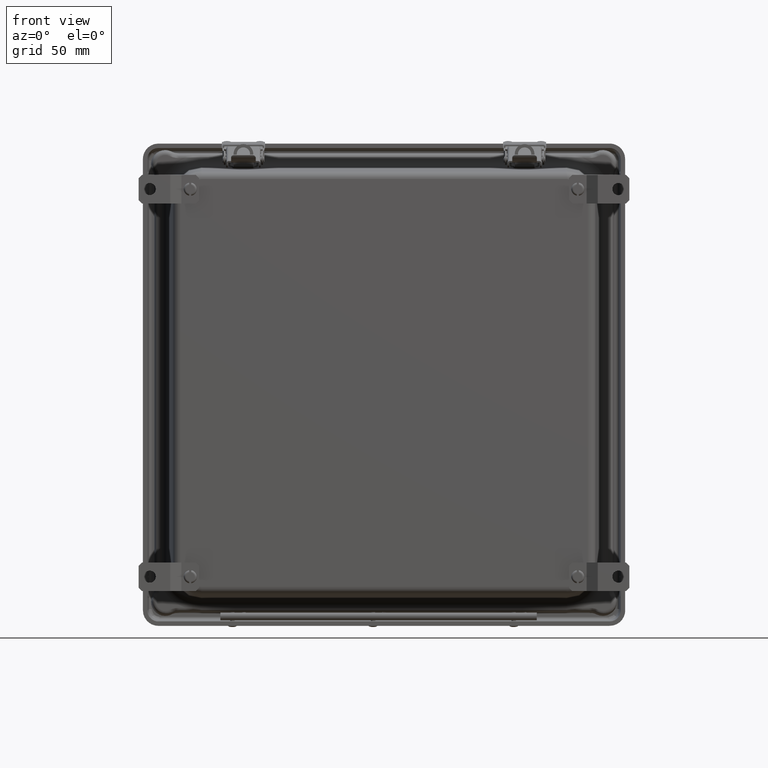
[diagram: clean part render]
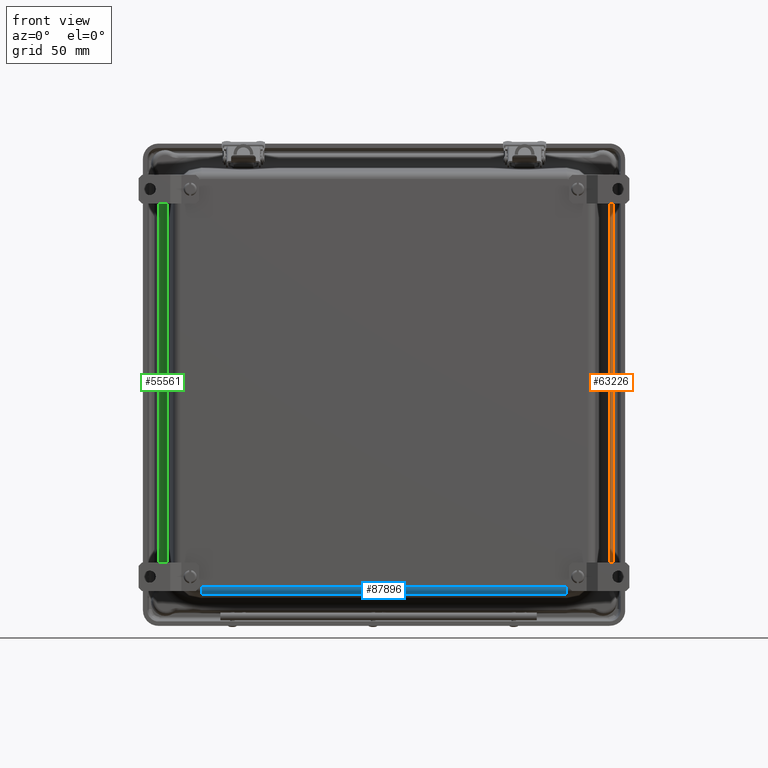
[diagram: same view with three faces highlighted in distinct colors, each labeled with its STEP entity id]
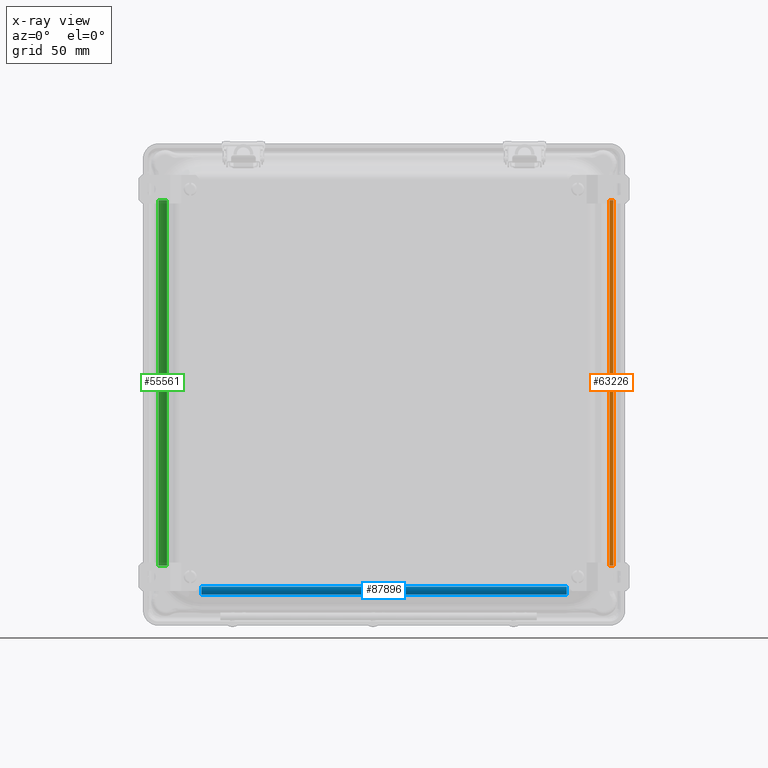
[diagram: x-ray of the same camera — body ghosted, the three highlighted faces saturated]
A machine part, front view with three faces highlighted in distinct colors.
The next image is the same camera in x-ray (body ghosted, the three faces saturated) — at least one of them is partly hidden behind the body in this view.
Their STEP definitions:

[orange] entity #63226 — the highlighted cylindrical surface (edge-blend (fillet) strip) has radius 3.175 mm, axis along (-0, 0, -1).
#16 = ORIENTED_EDGE ( 'NONE', *, *, #86025, .T. ) ;
#8130 = DIRECTION ( 'NONE',  ( 0.0000000000000000000, 0.0000000000000000000, 1.000000000000000000 ) ) ;
#8835 = CARTESIAN_POINT ( 'NONE',  ( 6.396238883583093200, -0.4777936919030115700, 5.198999999999999000 ) ) ;
#12183 = CARTESIAN_POINT ( 'NONE',  ( 6.396238883583093200, -0.4777936919030115200, 5.198999999999999000 ) ) ;
#13624 = VERTEX_POINT ( 'NONE', #23896 ) ;
#17718 = DIRECTION ( 'NONE',  ( 1.761982086452773900E-014, 3.589168845191315400E-015, 1.000000000000000000 ) ) ;
#19847 = CYLINDRICAL_SURFACE ( 'NONE', #88464, 0.1250000000000004400 ) ;
#20323 = VECTOR ( 'NONE', #24576, 39.37007874015748100 ) ;
#23896 = CARTESIAN_POINT ( 'NONE',  ( 6.421189083935123800, -0.6002783338071844300, -5.198999999999999000 ) ) ;
#24576 = DIRECTION ( 'NONE',  ( -1.279985460735938000E-019, -3.665398785208366700E-018, -1.000000000000000000 ) ) ;
#29219 = AXIS2_PLACEMENT_3D ( 'NONE', #82875, #17718, #65324 ) ;
#35527 = VERTEX_POINT ( 'NONE', #68898 ) ;
#36287 = EDGE_CURVE ( 'NONE', #39078, #90282, #45842, .T. ) ;
#36434 = EDGE_CURVE ( 'NONE', #90282, #35527, #99775, .T. ) ;
#38711 = CIRCLE ( 'NONE', #29219, 0.1250000000000004400 ) ;
#39078 = VERTEX_POINT ( 'NONE', #101453 ) ;
#41513 = CARTESIAN_POINT ( 'NONE',  ( 6.421189083935124700, -0.6002783338071845400, 5.198999999999999000 ) ) ;
#45842 = CIRCLE ( 'NONE', #101893, 0.1250000000000004400 ) ;
#48850 = CARTESIAN_POINT ( 'NONE',  ( 6.521162736960480500, -0.4821561289908242200, -5.836861563668760400 ) ) ;
#50800 = DIRECTION ( 'NONE',  ( 1.050912865421913600E-016, -0.0000000000000000000, 1.000000000000000000 ) ) ;
#55478 = VECTOR ( 'NONE', #50800, 39.37007874015748100 ) ;
#58050 = EDGE_LOOP ( 'NONE', ( #16, #100726, #61068, #71778 ) ) ;
#61068 = ORIENTED_EDGE ( 'NONE', *, *, #36287, .F. ) ;
#61498 = DIRECTION ( 'NONE',  ( -1.050912865421913600E-016, 0.0000000000000000000, -1.000000000000000000 ) ) ;
#63226 = ADVANCED_FACE ( 'NONE', ( #92918 ), #19847, .T. ) ;
#65324 = DIRECTION ( 'NONE',  ( 1.000000000000000000, 0.0000000000000000000, -1.748382715945122100E-014 ) ) ;
#67027 = EDGE_CURVE ( 'NONE', #13624, #39078, #77284, .T. ) ;
#68898 = CARTESIAN_POINT ( 'NONE',  ( 6.521162736960480500, -0.4821561289908240500, -5.199000000000000700 ) ) ;
#71778 = ORIENTED_EDGE ( 'NONE', *, *, #67027, .F. ) ;
#77284 = LINE ( 'NONE', #41513, #55478 ) ;
#79487 = CARTESIAN_POINT ( 'NONE',  ( 6.521162736960480500, -0.4821561289908241600, 5.198999999999999000 ) ) ;
#82875 = CARTESIAN_POINT ( 'NONE',  ( 6.396238883583093200, -0.4777936919030112400, -5.198999999999999000 ) ) ;
#86025 = EDGE_CURVE ( 'NONE', #13624, #35527, #38711, .T. ) ;
#88464 = AXIS2_PLACEMENT_3D ( 'NONE', #12183, #61498, #103114 ) ;
#90282 = VERTEX_POINT ( 'NONE', #79487 ) ;
#92918 = FACE_OUTER_BOUND ( 'NONE', #58050, .T. ) ;
#97311 = DIRECTION ( 'NONE',  ( 1.000000000000000000, 0.0000000000000000000, 0.0000000000000000000 ) ) ;
#99775 = LINE ( 'NONE', #48850, #20323 ) ;
#100726 = ORIENTED_EDGE ( 'NONE', *, *, #36434, .F. ) ;
#101453 = CARTESIAN_POINT ( 'NONE',  ( 6.421189083935125600, -0.6002783338071843200, 5.198999999999999000 ) ) ;
#101893 = AXIS2_PLACEMENT_3D ( 'NONE', #8835, #8130, #97311 ) ;
#103114 = DIRECTION ( 'NONE',  ( -1.000000000000000000, 0.0000000000000000000, 0.0000000000000000000 ) ) ;

[blue] entity #87896 — the highlighted cylindrical surface (edge-blend (fillet) strip) has radius 5.5626 mm, axis along (-1, 0, -0).
#5495 = AXIS2_PLACEMENT_3D ( 'NONE', #105757, #73451, #41508 ) ;
#5774 = DIRECTION ( 'NONE',  ( 0.0000000000000000000, 0.0000000000000000000, 1.000000000000000000 ) ) ;
#9044 = CARTESIAN_POINT ( 'NONE',  ( -5.198999999999999000, -5.912687934392951500, -6.018351045082069600 ) ) ;
#11923 = ORIENTED_EDGE ( 'NONE', *, *, #49035, .F. ) ;
#16253 = LINE ( 'NONE', #56023, #32915 ) ;
#19159 = FACE_OUTER_BOUND ( 'NONE', #55098, .T. ) ;
#32915 = VECTOR ( 'NONE', #104829, 39.37007874015748100 ) ;
#36524 = AXIS2_PLACEMENT_3D ( 'NONE', #41007, #48562, #65057 ) ;
#38088 = ORIENTED_EDGE ( 'NONE', *, *, #52449, .T. ) ;
#38256 = CARTESIAN_POINT ( 'NONE',  ( 5.198999999999999000, -5.912687934392951500, -6.018351045082067900 ) ) ;
#41007 = CARTESIAN_POINT ( 'NONE',  ( 5.198999999999999000, -5.905999999999999700, -5.799453188688827900 ) ) ;
#41138 = EDGE_CURVE ( 'NONE', #56029, #51529, #66928, .T. ) ;
#41315 = CARTESIAN_POINT ( 'NONE',  ( 5.198999999999999000, -6.125000000000000000, -5.799453188688827900 ) ) ;
#41508 = DIRECTION ( 'NONE',  ( 0.0000000000000000000, 0.0000000000000000000, -1.000000000000000000 ) ) ;
#43483 = VERTEX_POINT ( 'NONE', #66268 ) ;
#44680 = CYLINDRICAL_SURFACE ( 'NONE', #95303, 0.2190000000000000300 ) ;
#46164 = CARTESIAN_POINT ( 'NONE',  ( 5.198999999999999000, -5.905999999999999700, -5.799453188688827900 ) ) ;
#48562 = DIRECTION ( 'NONE',  ( 1.000000000000000000, 0.0000000000000000000, 0.0000000000000000000 ) ) ;
#49035 = EDGE_CURVE ( 'NONE', #43483, #77072, #16253, .T. ) ;
#50762 = ORIENTED_EDGE ( 'NONE', *, *, #41138, .F. ) ;
#51529 = VERTEX_POINT ( 'NONE', #9044 ) ;
#52449 = EDGE_CURVE ( 'NONE', #43483, #51529, #86162, .T. ) ;
#55098 = EDGE_LOOP ( 'NONE', ( #38088, #50762, #83234, #11923 ) ) ;
#55417 = CARTESIAN_POINT ( 'NONE',  ( 5.198999999999999000, -5.912687934392951500, -6.018351045082069600 ) ) ;
#56023 = CARTESIAN_POINT ( 'NONE',  ( 5.199000000000000700, -6.125000000000000000, -5.799453188688828800 ) ) ;
#56029 = VERTEX_POINT ( 'NONE', #55417 ) ;
#65057 = DIRECTION ( 'NONE',  ( 0.0000000000000000000, 0.0000000000000000000, -1.000000000000000000 ) ) ;
#66268 = CARTESIAN_POINT ( 'NONE',  ( -5.198999999999999000, -6.125000000000000000, -5.799453188688829600 ) ) ;
#66928 = LINE ( 'NONE', #38256, #75891 ) ;
#73451 = DIRECTION ( 'NONE',  ( 1.000000000000000000, 0.0000000000000000000, 0.0000000000000000000 ) ) ;
#75891 = VECTOR ( 'NONE', #96719, 39.37007874015748100 ) ;
#77072 = VERTEX_POINT ( 'NONE', #41315 ) ;
#83234 = ORIENTED_EDGE ( 'NONE', *, *, #83637, .F. ) ;
#83637 = EDGE_CURVE ( 'NONE', #77072, #56029, #96820, .T. ) ;
#86162 = CIRCLE ( 'NONE', #5495, 0.2190000000000000300 ) ;
#87404 = DIRECTION ( 'NONE',  ( -1.000000000000000000, 0.0000000000000000000, -1.050912865421913600E-016 ) ) ;
#87896 = ADVANCED_FACE ( 'NONE', ( #19159 ), #44680, .T. ) ;
#95303 = AXIS2_PLACEMENT_3D ( 'NONE', #46164, #87404, #5774 ) ;
#96719 = DIRECTION ( 'NONE',  ( -1.000000000000000000, 1.796542747822042800E-037, -1.050912865421913300E-016 ) ) ;
#96820 = CIRCLE ( 'NONE', #36524, 0.2190000000000000300 ) ;
#104829 = DIRECTION ( 'NONE',  ( 1.000000000000000000, -0.0000000000000000000, 1.050912865421913600E-016 ) ) ;
#105757 = CARTESIAN_POINT ( 'NONE',  ( -5.198999999999999000, -5.905999999999999700, -5.799453188688829600 ) ) ;

[green] entity #55561 — the highlighted cylindrical surface (edge-blend (fillet) strip) has radius 7.9248 mm, axis along (0, 0, 1).
#1751 = DIRECTION ( 'NONE',  ( 0.0000000000000000000, 0.0000000000000000000, 1.000000000000000000 ) ) ;
#2255 = DIRECTION ( 'NONE',  ( -0.0000000000000000000, -0.0000000000000000000, -1.000000000000000000 ) ) ;
#2363 = EDGE_CURVE ( 'NONE', #81284, #66908, #29335, .T. ) ;
#2415 = AXIS2_PLACEMENT_3D ( 'NONE', #105118, #88261, #5929 ) ;
#5903 = DIRECTION ( 'NONE',  ( 0.0000000000000000000, 0.0000000000000000000, -1.000000000000000000 ) ) ;
#5929 = DIRECTION ( 'NONE',  ( -1.000000000000000000, 0.0000000000000000000, 0.0000000000000000000 ) ) ;
#17492 = CARTESIAN_POINT ( 'NONE',  ( -6.483464784013796700, -0.9060000000000000300, -5.198999999999999800 ) ) ;
#19758 = EDGE_CURVE ( 'NONE', #66908, #47605, #96784, .T. ) ;
#26238 = VECTOR ( 'NONE', #5903, 39.37007874015748100 ) ;
#26626 = ORIENTED_EDGE ( 'NONE', *, *, #2363, .F. ) ;
#26713 = CARTESIAN_POINT ( 'NONE',  ( -6.421189083935124700, -0.6002783338071844300, 5.198999999999999800 ) ) ;
#27296 = CARTESIAN_POINT ( 'NONE',  ( -6.421189083935124700, -0.6002783338071844300, -5.198999999999999800 ) ) ;
#29335 = CIRCLE ( 'NONE', #2415, 0.3120000000000003900 ) ;
#32260 = EDGE_CURVE ( 'NONE', #103108, #47605, #54038, .T. ) ;
#38410 = CARTESIAN_POINT ( 'NONE',  ( -6.171610303672742300, -0.8964719838785353300, -5.198999999999999800 ) ) ;
#39983 = ORIENTED_EDGE ( 'NONE', *, *, #32260, .T. ) ;
#41771 = DIRECTION ( 'NONE',  ( 1.000000000000000000, 0.0000000000000000000, 0.0000000000000000000 ) ) ;
#41780 = CARTESIAN_POINT ( 'NONE',  ( -6.171610303672742300, -0.8964719838785354400, -5.198999999999999800 ) ) ;
#47605 = VERTEX_POINT ( 'NONE', #41780 ) ;
#54038 = CIRCLE ( 'NONE', #71387, 0.3120000000000003900 ) ;
#55406 = ORIENTED_EDGE ( 'NONE', *, *, #19758, .F. ) ;
#55561 = ADVANCED_FACE ( 'NONE', ( #75522 ), #76763, .F. ) ;
#65512 = CARTESIAN_POINT ( 'NONE',  ( -6.421189083935124700, -0.6002783338071844300, -5.198999999999999800 ) ) ;
#66908 = VERTEX_POINT ( 'NONE', #90301 ) ;
#70886 = AXIS2_PLACEMENT_3D ( 'NONE', #17492, #1751, #41771 ) ;
#71387 = AXIS2_PLACEMENT_3D ( 'NONE', #77655, #84864, #93118 ) ;
#75383 = EDGE_CURVE ( 'NONE', #81284, #103108, #87378, .T. ) ;
#75522 = FACE_OUTER_BOUND ( 'NONE', #80827, .T. ) ;
#76763 = CYLINDRICAL_SURFACE ( 'NONE', #70886, 0.3120000000000003900 ) ;
#77655 = CARTESIAN_POINT ( 'NONE',  ( -6.483464784013796700, -0.9060000000000000300, -5.198999999999999800 ) ) ;
#80827 = EDGE_LOOP ( 'NONE', ( #26626, #86687, #39983, #55406 ) ) ;
#81284 = VERTEX_POINT ( 'NONE', #26713 ) ;
#84864 = DIRECTION ( 'NONE',  ( 0.0000000000000000000, 0.0000000000000000000, -1.000000000000000000 ) ) ;
#86018 = VECTOR ( 'NONE', #2255, 39.37007874015748100 ) ;
#86687 = ORIENTED_EDGE ( 'NONE', *, *, #75383, .T. ) ;
#87378 = LINE ( 'NONE', #27296, #86018 ) ;
#88261 = DIRECTION ( 'NONE',  ( 0.0000000000000000000, 0.0000000000000000000, -1.000000000000000000 ) ) ;
#90301 = CARTESIAN_POINT ( 'NONE',  ( -6.171610303672742300, -0.8964719838785354400, 5.198999999999999800 ) ) ;
#93118 = DIRECTION ( 'NONE',  ( -1.000000000000000000, 0.0000000000000000000, 0.0000000000000000000 ) ) ;
#96784 = LINE ( 'NONE', #38410, #26238 ) ;
#103108 = VERTEX_POINT ( 'NONE', #65512 ) ;
#105118 = CARTESIAN_POINT ( 'NONE',  ( -6.483464784013796700, -0.9060000000000000300, 5.198999999999999800 ) ) ;